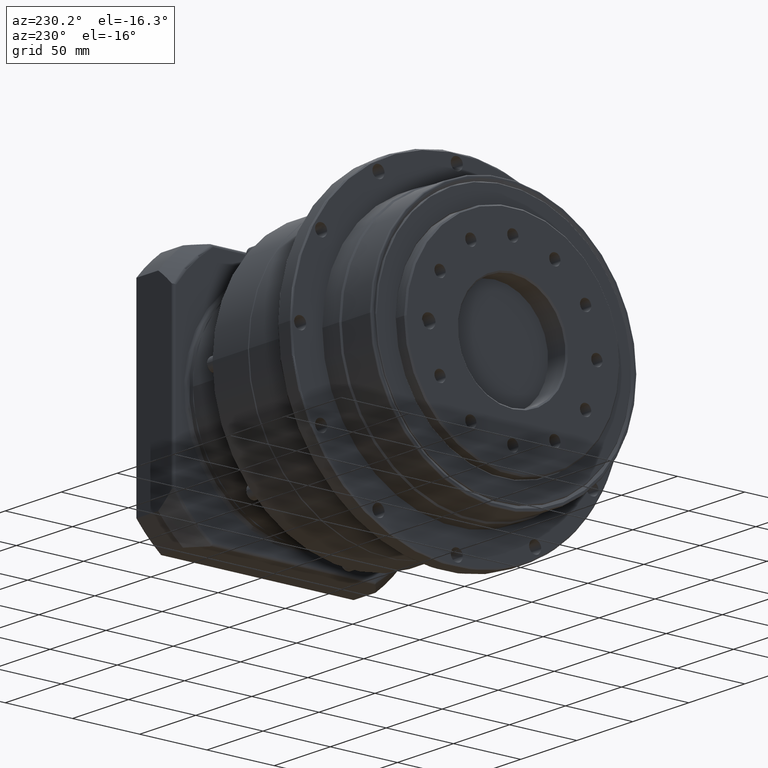
[diagram: clean part render]
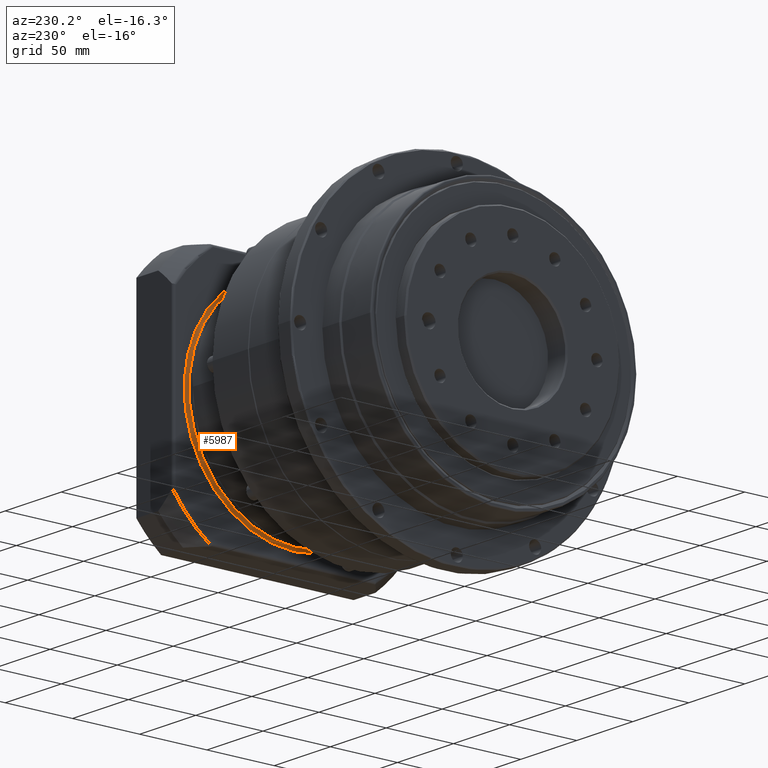
[diagram: same view with one face highlighted and labeled with its STEP entity id]
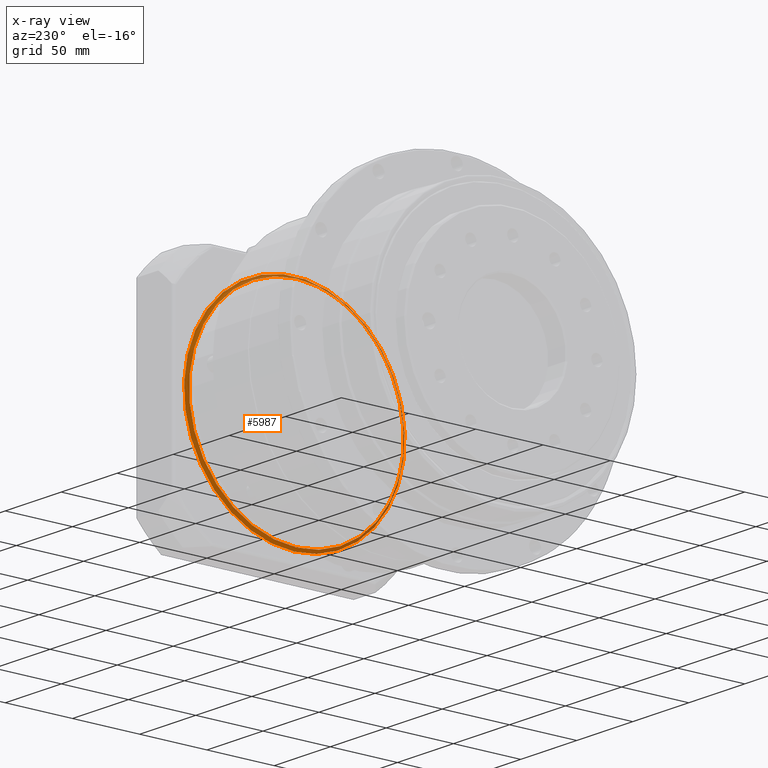
[diagram: x-ray of the same camera — body ghosted, the highlighted face saturated]
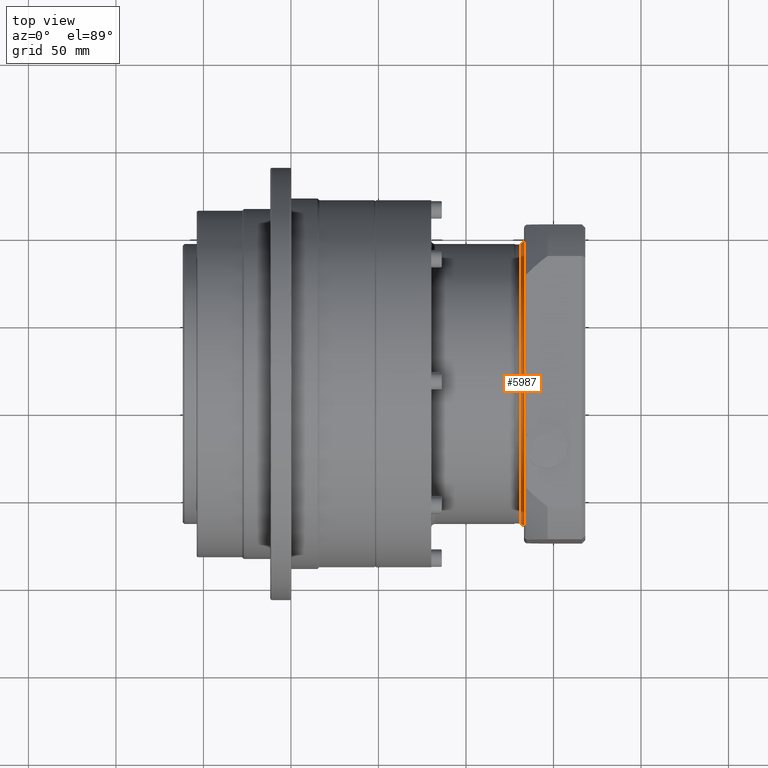
[diagram: same view with one face highlighted and labeled with its STEP entity id]
A machine part, auxiliary view. The second image highlights one B-rep face of the part: STEP entity #5987.
The next image is the same camera in x-ray: the body ghosted, the highlighted face saturated — about 35% of this face is hidden behind the body in this view.
A second angle (top view) of the same face is appended — the face is thin or edge-on in the first view.
In plain terms, the highlighted toroidal blend (fillet) surface has major radius 82 mm and minor (blend) radius 2 mm.
Its self-contained STEP definition (entity closure, byte-faithful):
#154=TOROIDAL_SURFACE('',#6542,82.,2.);
#1268=FACE_BOUND('',#2125,.T.);
#1620=FACE_OUTER_BOUND('',#2124,.T.);
#2124=EDGE_LOOP('',(#4793));
#2125=EDGE_LOOP('',(#4794));
#2744=CIRCLE('',#6541,82.);
#2745=CIRCLE('',#6543,80.);
#3209=VERTEX_POINT('',#9801);
#3210=VERTEX_POINT('',#9804);
#3840=EDGE_CURVE('',#3209,#3209,#2744,.T.);
#3841=EDGE_CURVE('',#3210,#3210,#2745,.T.);
#4793=ORIENTED_EDGE('',*,*,#3841,.T.);
#4794=ORIENTED_EDGE('',*,*,#3840,.T.);
#5987=ADVANCED_FACE('',(#1620,#1268),#154,.F.);
#6541=AXIS2_PLACEMENT_3D('',#9802,#7675,#7676);
#6542=AXIS2_PLACEMENT_3D('',#9803,#7677,#7678);
#6543=AXIS2_PLACEMENT_3D('',#9805,#7679,#7680);
#7675=DIRECTION('center_axis',(-1.,2.21052996687963E-16,1.32434103674276E-15));
#7676=DIRECTION('ref_axis',(1.32434103674276E-15,2.77555756156287E-15,1.));
#7677=DIRECTION('center_axis',(1.,-2.21052996687963E-16,-1.32434103674276E-15));
#7678=DIRECTION('ref_axis',(1.35341473478114E-15,2.77027078525515E-15,1.));
#7679=DIRECTION('center_axis',(1.,-2.21052996687963E-16,-1.32434103674276E-15));
#7680=DIRECTION('ref_axis',(1.32434103674276E-15,2.77555756156287E-15,1.));
#9801=CARTESIAN_POINT('',(83.164604472402,15.67180156914,-36.5289379410846));
#9802=CARTESIAN_POINT('Origin',(83.1646044724021,15.6718015691402,45.4710620589154));
#9803=CARTESIAN_POINT('Origin',(81.1646044724021,15.6718015691402,45.4710620589154));
#9804=CARTESIAN_POINT('',(81.164604472402,15.67180156914,-34.5289379410846));
#9805=CARTESIAN_POINT('Origin',(81.1646044724021,15.6718015691402,45.4710620589154));